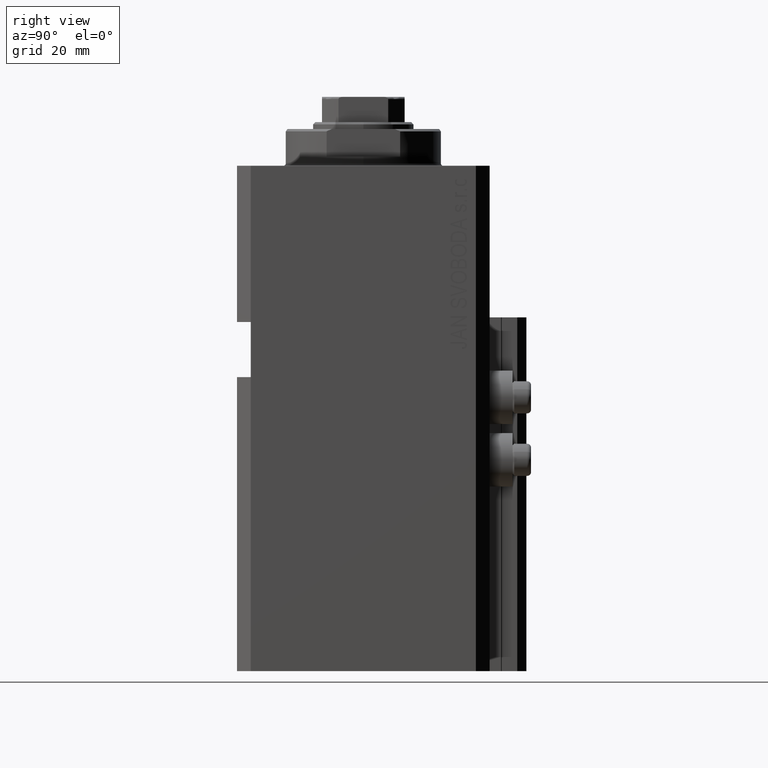
[diagram: clean part render]
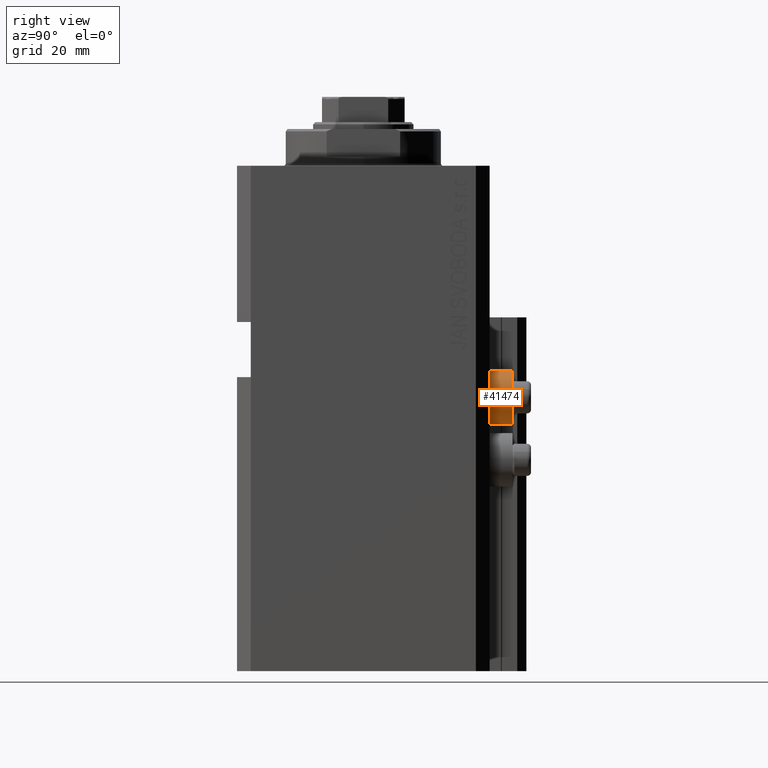
[diagram: same view with one face highlighted and labeled with its STEP entity id]
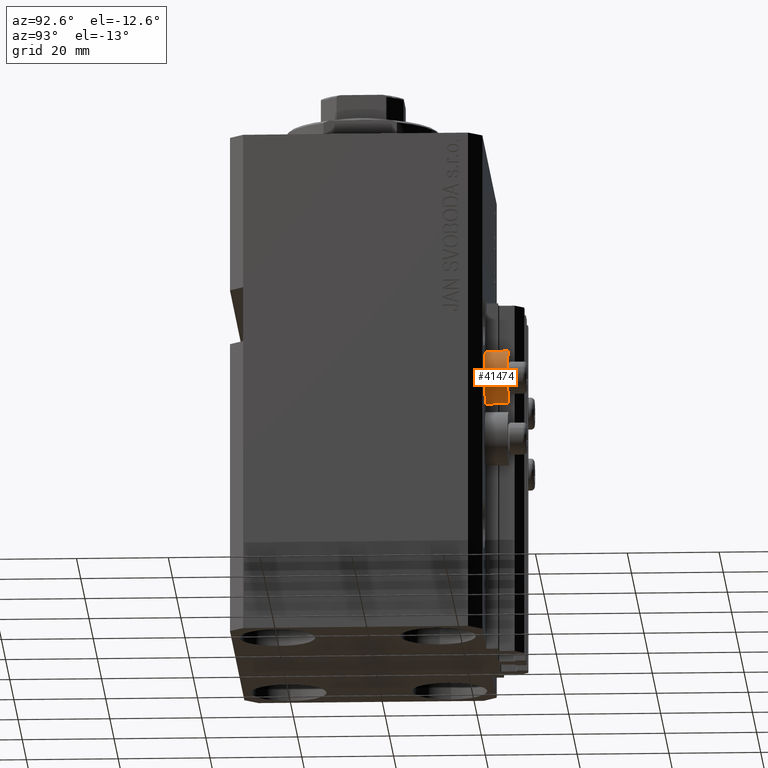
[diagram: same view with one face highlighted and labeled with its STEP entity id]
A machine part, right view. The second image highlights one B-rep face of the part: STEP entity #41474.
A second angle (auxiliary view) of the same face is appended — the face is thin or edge-on in the first view.
In plain terms, the highlighted cylindrical surface (edge-blend (fillet) strip) has radius 5.8 mm, axis along (0, 1, 0).
Its self-contained STEP definition (entity closure, byte-faithful):
#840 = DIRECTION ( 'NONE',  ( 0.000000000000000000, 0.000000000000000000, 1.000000000000000000 ) ) ;
#1234 = VERTEX_POINT ( 'NONE', #37130 ) ;
#1517 = DIRECTION ( 'NONE',  ( -0.000000000000000000, -1.000000000000000000, -0.000000000000000000 ) ) ;
#1954 = DIRECTION ( 'NONE',  ( 0.000000000000000000, 1.000000000000000000, 0.000000000000000000 ) ) ;
#3180 = CARTESIAN_POINT ( 'NONE',  ( 18.00000000000000355, 32.49999999996100541, -44.60000000000000142 ) ) ;
#3499 = ORIENTED_EDGE ( 'NONE', *, *, #33559, .F. ) ;
#3740 = CARTESIAN_POINT ( 'NONE',  ( 18.00000000000000355, 32.49999999996100541, -56.20000000000000284 ) ) ;
#5340 = VERTEX_POINT ( 'NONE', #3180 ) ;
#8140 = ORIENTED_EDGE ( 'NONE', *, *, #38877, .T. ) ;
#8238 = CARTESIAN_POINT ( 'NONE',  ( 18.00000000000000355, 27.50000000000000355, -50.39999999999999858 ) ) ;
#8374 = ORIENTED_EDGE ( 'NONE', *, *, #31873, .F. ) ;
#9852 = DIRECTION ( 'NONE',  ( 0.000000000000000000, 1.000000000000000000, 0.000000000000000000 ) ) ;
#10922 = DIRECTION ( 'NONE',  ( -0.000000000000000000, -1.000000000000000000, -0.000000000000000000 ) ) ;
#13438 = LINE ( 'NONE', #23746, #40065 ) ;
#14621 = VECTOR ( 'NONE', #9852, 1000.000000000000000 ) ;
#15774 = CYLINDRICAL_SURFACE ( 'NONE', #46052, 5.799999999999999822 ) ;
#20426 = ORIENTED_EDGE ( 'NONE', *, *, #25486, .T. ) ;
#23157 = AXIS2_PLACEMENT_3D ( 'NONE', #8238, #1517, #41028 ) ;
#23650 = DIRECTION ( 'NONE',  ( 0.000000000000000000, 0.000000000000000000, 1.000000000000000000 ) ) ;
#23746 = CARTESIAN_POINT ( 'NONE',  ( 18.00000000000000355, 32.49999999996100541, -44.60000000000000142 ) ) ;
#23932 = CIRCLE ( 'NONE', #42253, 5.799999999999999822 ) ;
#24935 = LINE ( 'NONE', #43110, #14621 ) ;
#25486 = EDGE_CURVE ( 'NONE', #1234, #34654, #24935, .T. ) ;
#27001 = DIRECTION ( 'NONE',  ( 0.000000000000000000, 1.000000000000000000, 0.000000000000000000 ) ) ;
#31873 = EDGE_CURVE ( 'NONE', #40306, #5340, #13438, .T. ) ;
#32950 = CARTESIAN_POINT ( 'NONE',  ( 18.00000000000000355, 32.49999999996100541, -50.39999999999999858 ) ) ;
#33559 = EDGE_CURVE ( 'NONE', #1234, #40306, #43772, .T. ) ;
#33955 = FACE_OUTER_BOUND ( 'NONE', #42375, .T. ) ;
#34654 = VERTEX_POINT ( 'NONE', #3740 ) ;
#37130 = CARTESIAN_POINT ( 'NONE',  ( 18.00000000000000355, 27.50000000000000355, -56.20000000000000284 ) ) ;
#38877 = EDGE_CURVE ( 'NONE', #34654, #5340, #23932, .T. ) ;
#40003 = CARTESIAN_POINT ( 'NONE',  ( 18.00000000000000355, 27.50000000000000355, -44.60000000000000142 ) ) ;
#40065 = VECTOR ( 'NONE', #1954, 1000.000000000000000 ) ;
#40306 = VERTEX_POINT ( 'NONE', #40003 ) ;
#41028 = DIRECTION ( 'NONE',  ( 0.000000000000000000, 0.000000000000000000, 1.000000000000000000 ) ) ;
#41474 = ADVANCED_FACE ( 'NONE', ( #33955 ), #15774, .T. ) ;
#42253 = AXIS2_PLACEMENT_3D ( 'NONE', #32950, #10922, #840 ) ;
#42375 = EDGE_LOOP ( 'NONE', ( #3499, #20426, #8140, #8374 ) ) ;
#43110 = CARTESIAN_POINT ( 'NONE',  ( 18.00000000000000355, 32.49999999996100541, -56.20000000000000284 ) ) ;
#43772 = CIRCLE ( 'NONE', #23157, 5.799999999999999822 ) ;
#44942 = CARTESIAN_POINT ( 'NONE',  ( 18.00000000000000355, 32.49999999996100541, -50.39999999999999858 ) ) ;
#46052 = AXIS2_PLACEMENT_3D ( 'NONE', #44942, #27001, #23650 ) ;